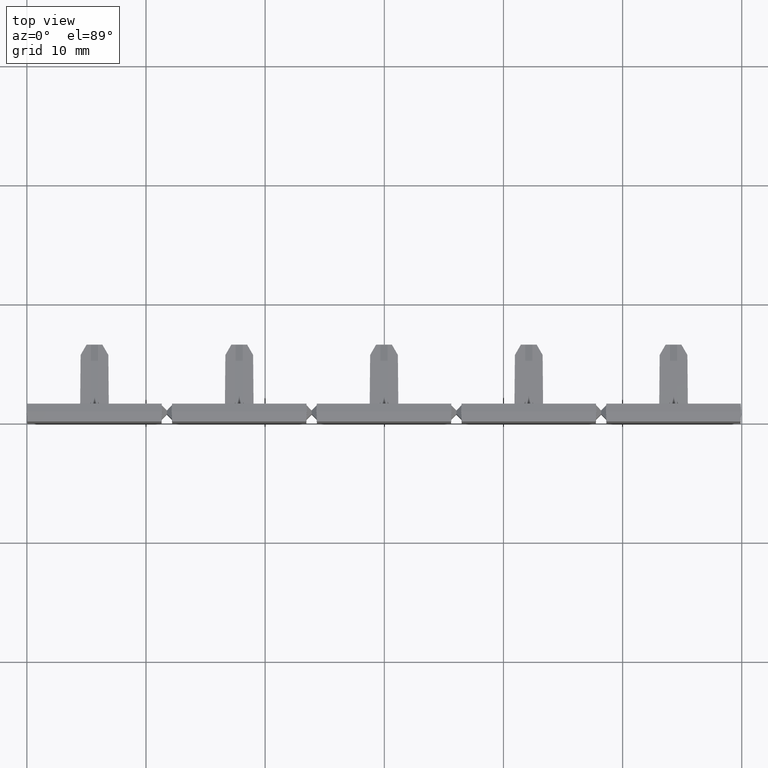
[diagram: clean part render]
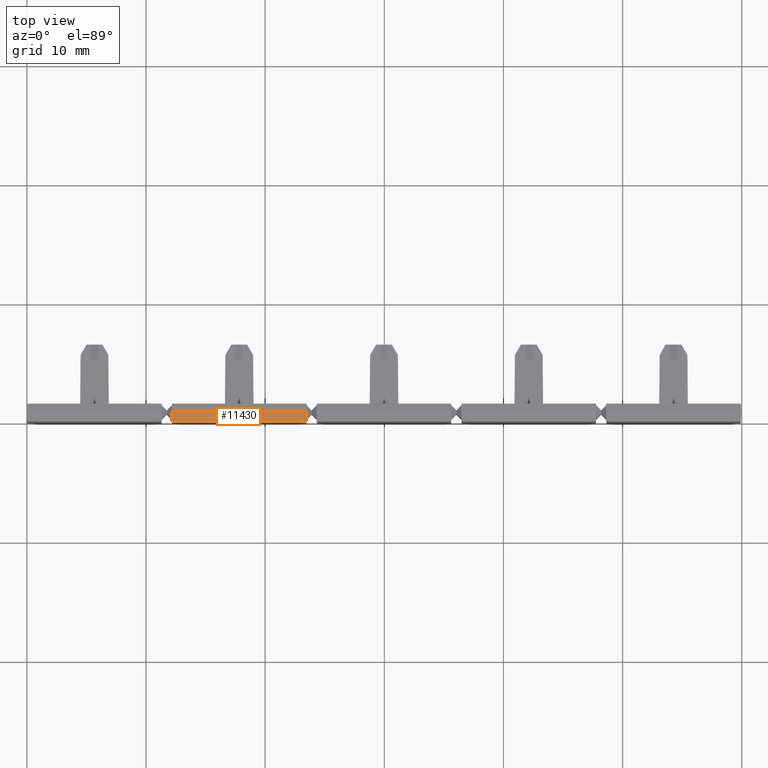
[diagram: same view with one face highlighted and labeled with its STEP entity id]
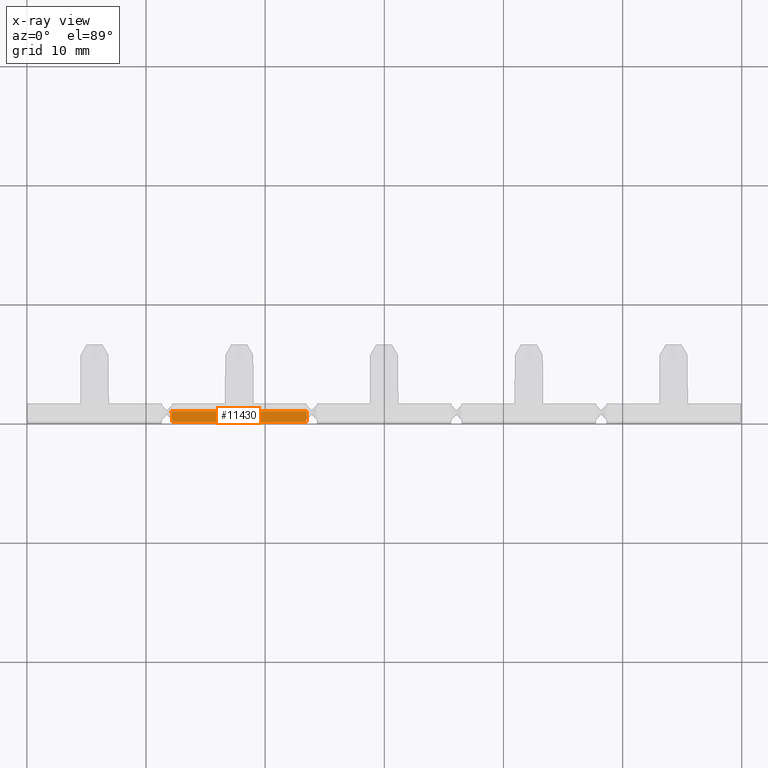
[diagram: x-ray of the same camera — body ghosted, the highlighted face saturated]
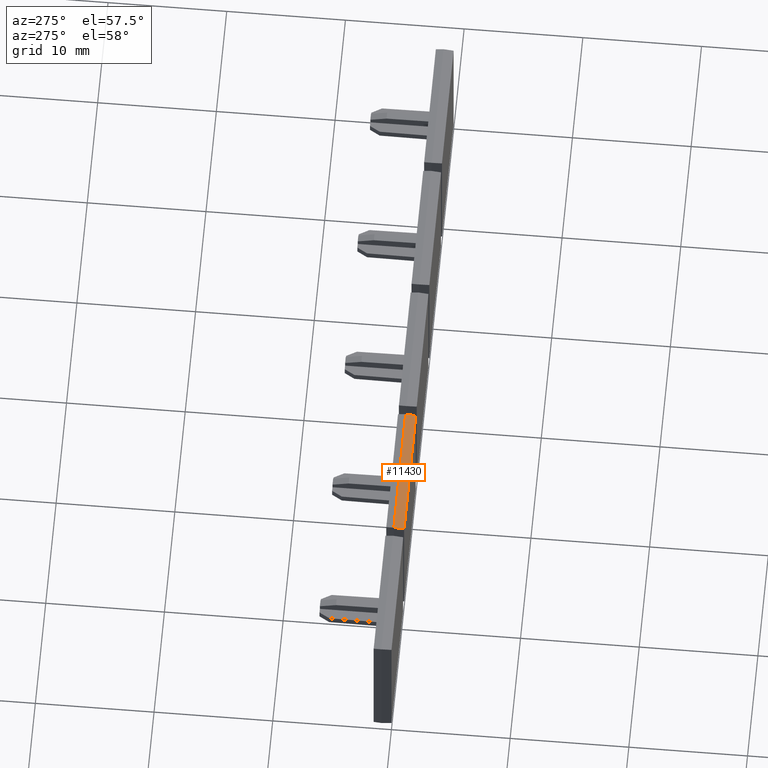
[diagram: same view with one face highlighted and labeled with its STEP entity id]
A machine part, top view. The second image highlights one B-rep face of the part: STEP entity #11430.
The next image is the same camera in x-ray: the body ghosted, the highlighted face saturated — about 0% of this face is hidden behind the body in this view.
A second angle (auxiliary view) of the same face is appended — the face is thin or edge-on in the first view.
In plain terms, the highlighted planar face has unit normal (0, 0.0523, -0.9986).
Its self-contained STEP definition (entity closure, byte-faithful):
#8530=CARTESIAN_POINT('',(13.1629727239039,4.41950785563163,
44.4997631217514));
#8540=VERTEX_POINT('',#8530);
#8970=CARTESIAN_POINT('',(13.1177358864,3.5563368021905,44.5449999998044
));
#8980=VERTEX_POINT('',#8970);
#9010=CARTESIAN_POINT('',(11.5619150671493,-26.1304921377419,
46.1008207785251));
#9020=DIRECTION('',(-0.052264427688875,-0.997264688634188,
0.0522644276894961));
#9030=VECTOR('',#9020,1.);
#9040=LINE('',#9010,#9030);
#9050=EDGE_CURVE('',#8540,#8980,#9040,.T.);
#10200=CARTESIAN_POINT('',(13.1177358660456,3.55633718797062,
33.195000020464));
#10210=VERTEX_POINT('',#10200);
#10240=CARTESIAN_POINT('',(13.117735866145,3.55633718904998,
53.6700000000523));
#10250=DIRECTION('',(2.11364818889554E-12,4.04843292960094E-13,1.));
#10260=VECTOR('',#10250,1.);
#10270=LINE('',#10240,#10260);
#10280=EDGE_CURVE('',#10210,#8980,#10270,.T.);
#11200=CARTESIAN_POINT('',(13.1177358661514,3.55633718957933,
43.4300240225844));
#11210=DIRECTION('',(0.99862953475456,-0.0523359562432165,
-2.08956364664585E-12));
#11220=DIRECTION('',(0.0523359562432165,0.99862953475456,
-5.14908268424835E-13));
#11230=AXIS2_PLACEMENT_3D('',#11200,#11210,#11220);
#11240=PLANE('',#11230);
#11250=CARTESIAN_POINT('',(11.5619150671187,-26.1304921377478,
31.639179221556));
#11260=DIRECTION('',(0.0522644276890959,0.997264688634231,
0.0522644276884606));
#11270=VECTOR('',#11260,1.);
#11280=LINE('',#11250,#11270);
#11290=CARTESIAN_POINT('',(13.1629727238801,4.41950785562703,
33.2402368782979));
#11300=VERTEX_POINT('',#11290);
#11310=EDGE_CURVE('',#10210,#11300,#11280,.T.);
#11320=ORIENTED_EDGE('',*,*,#11310,.F.);
#11330=CARTESIAN_POINT('',(13.1629727239233,4.41950785563537,
53.670000000052));
#11340=DIRECTION('',(2.11383437872987E-12,4.08396006638896E-13,1.));
#11350=VECTOR('',#11340,1.);
#11360=LINE('',#11330,#11350);
#11370=EDGE_CURVE('',#11300,#8540,#11360,.T.);
#11380=ORIENTED_EDGE('',*,*,#11370,.F.);
#11390=ORIENTED_EDGE('',*,*,#9050,.F.);
#11400=ORIENTED_EDGE('',*,*,#10280,.T.);
#11410=EDGE_LOOP('',(#11400,#11390,#11380,#11320));
#11420=FACE_OUTER_BOUND('',#11410,.T.);
#11430=ADVANCED_FACE('',(#11420),#11240,.F.);